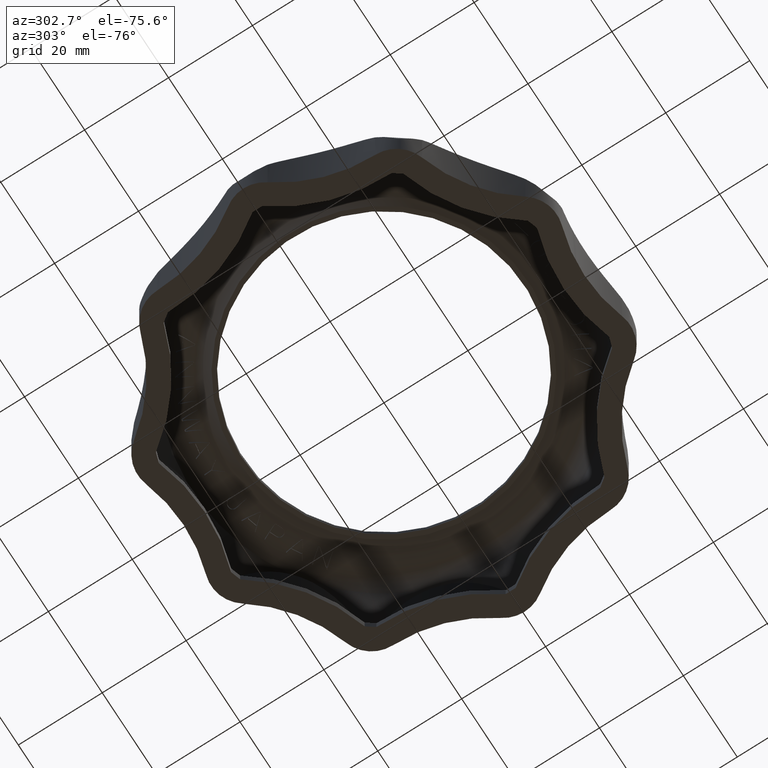
[diagram: clean part render]
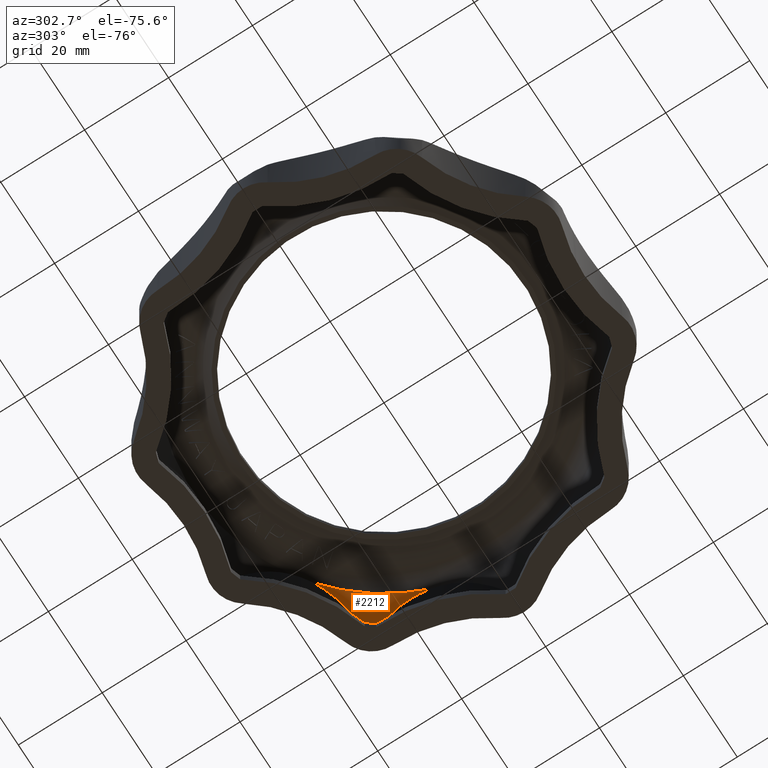
[diagram: same view with one face highlighted and labeled with its STEP entity id]
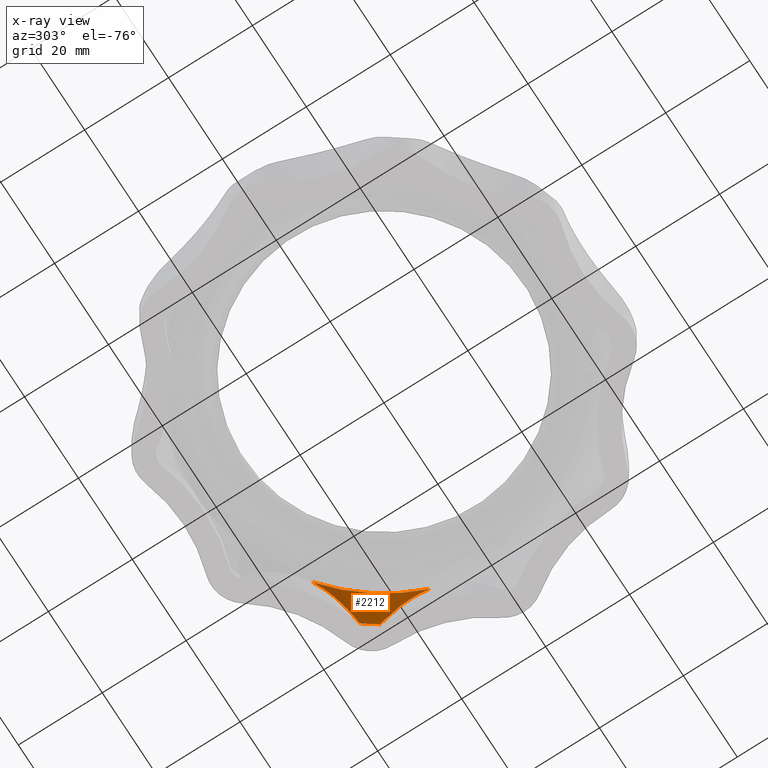
[diagram: x-ray of the same camera — body ghosted, the highlighted face saturated]
A machine part, auxiliary view. The second image highlights one B-rep face of the part: STEP entity #2212.
The next image is the same camera in x-ray: the body ghosted, the highlighted face saturated — about 0% of this face is hidden behind the body in this view.
In plain terms, the highlighted conical surface has half-angle 24.57 deg.
Its self-contained STEP definition (entity closure, byte-faithful):
#2212 = ADVANCED_FACE( '', ( #6566 ), #6567, .F. );
#6566 = FACE_OUTER_BOUND( '', #10997, .T. );
#6567 = CONICAL_SURFACE( '', #10998, 49.5000000000000, 0.428820245296812 );
#10997 = EDGE_LOOP( '', ( #30183, #30184, #30185, #30186, #30187, #30188 ) );
#10998 = AXIS2_PLACEMENT_3D( '', #30189, #30190, #30191 );
#30183 = ORIENTED_EDGE( '', *, *, #35040, .T. );
#30184 = ORIENTED_EDGE( '', *, *, #31573, .T. );
#30185 = ORIENTED_EDGE( '', *, *, #35038, .T. );
#30186 = ORIENTED_EDGE( '', *, *, #35030, .T. );
#30187 = ORIENTED_EDGE( '', *, *, #35026, .F. );
#30188 = ORIENTED_EDGE( '', *, *, #35029, .T. );
#30189 = CARTESIAN_POINT( '', ( 0.000000000000000, 0.000000000000000, 11.7997960675006 ) );
#30190 = DIRECTION( '', ( 3.93122838974283E-017, 7.71547013724938E-017, -1.00000000000000 ) );
#30191 = DIRECTION( '', ( -0.951056516295154, -0.309016994374947, -6.12303176911189E-017 ) );
#31573 = EDGE_CURVE( '', #39036, #39073, #39075, .T. );
#35026 = EDGE_CURVE( '', #45744, #45743, #45746, .T. );
#35029 = EDGE_CURVE( '', #45744, #45748, #45750, .T. );
#35030 = EDGE_CURVE( '', #45751, #45743, #45752, .T. );
#35038 = EDGE_CURVE( '', #39073, #45751, #45764, .T. );
#35040 = EDGE_CURVE( '', #45748, #39036, #45766, .T. );
#39036 = VERTEX_POINT( '', #53664 );
#39073 = VERTEX_POINT( '', #53746 );
#39075 = CIRCLE( '', #53753, 45.4012686158287 );
#45743 = VERTEX_POINT( '', #71159 );
#45744 = VERTEX_POINT( '', #71160 );
#45746 = CIRCLE( '', #71193, 49.5000000000000 );
#45748 = VERTEX_POINT( '', #71195 );
#45750 = B_SPLINE_CURVE_WITH_KNOTS( '', 3, ( #71198, #71199, #71200, #71201 ), .UNSPECIFIED., .F., .F., ( 4, 4 ), ( 2.79569734286648E-007, 0.000814701353727216 ), .UNSPECIFIED. );
#45751 = VERTEX_POINT( '', #71202 );
#45752 = B_SPLINE_CURVE_WITH_KNOTS( '', 3, ( #71203, #71204, #71205, #71206 ), .UNSPECIFIED., .F., .F., ( 4, 4 ), ( 3.86817736261023E-007, 0.000814808667586271 ), .UNSPECIFIED. );
#45764 = B_SPLINE_CURVE_WITH_KNOTS( '', 3, ( #71259, #71260, #71261, #71262, #71263, #71264, #71265, #71266, #71267, #71268, #71269, #71270 ), .UNSPECIFIED., .F., .F., ( 4, 2, 2, 2, 2, 4 ), ( 8.15083510131278E-007, 0.00344970910992022, 0.00517415612312525, 0.00689860313633029, 0.0103474971627404, 0.0137963911891504 ), .UNSPECIFIED. );
#45766 = B_SPLINE_CURVE_WITH_KNOTS( '', 3, ( #71283, #71284, #71285, #71286, #71287, #71288, #71289, #71290, #71291, #71292, #71293, #71294 ), .UNSPECIFIED., .F., .F., ( 4, 2, 2, 2, 2, 4 ), ( 3.39165996632777E-007, 0.00345701982049709, 0.00691370047499754, 0.0103703811294980, 0.0120987214567482, 0.0138270617839984 ), .UNSPECIFIED. );
#53664 = CARTESIAN_POINT( '', ( 42.3967576174761, 16.2416173902602, 20.7647700015187 ) );
#53746 = CARTESIAN_POINT( '', ( 28.5480099900149, 35.3027805921380, 20.7647700015187 ) );
#53753 = AXIS2_PLACEMENT_3D( '', #75462, #75463, #75464 );
#71159 = CARTESIAN_POINT( '', ( 38.8353027394915, 30.6931468105189, 11.7997960675006 ) );
#71160 = CARTESIAN_POINT( '', ( 41.1916815273020, 27.4498701809925, 11.7997960675006 ) );
#71193 = AXIS2_PLACEMENT_3D( '', #75822, #75823, #75824 );
#71195 = CARTESIAN_POINT( '', ( 41.2111262777387, 26.9125339721345, 12.4114941487268 ) );
#71198 = CARTESIAN_POINT( '', ( 41.1916815273021, 27.4498701809922, 11.7997960675004 ) );
#71199 = CARTESIAN_POINT( '', ( 41.2113691469430, 27.2602080894983, 11.9940081925494 ) );
#71200 = CARTESIAN_POINT( '', ( 41.2164028797956, 27.0821985803129, 12.1989220978330 ) );
#71201 = CARTESIAN_POINT( '', ( 41.2111262777388, 26.9125339721342, 12.4114941487266 ) );
#71202 = CARTESIAN_POINT( '', ( 38.3302743266268, 30.8776858201067, 12.4114942003040 ) );
#71203 = CARTESIAN_POINT( '', ( 38.3302743266267, 30.8776858201071, 12.4114942003038 ) );
#71204 = CARTESIAN_POINT( '', ( 38.4932654987188, 30.8302749544654, 12.1989221812944 ) );
#71205 = CARTESIAN_POINT( '', ( 38.6610071081544, 30.7704796585102, 11.9940082597571 ) );
#71206 = CARTESIAN_POINT( '', ( 38.8353027394912, 30.6931468105191, 11.7997960675003 ) );
#71259 = CARTESIAN_POINT( '', ( 28.5480099900149, 35.3027805921380, 20.7647700015187 ) );
#71260 = CARTESIAN_POINT( '', ( 29.5094645886031, 34.6911759417906, 20.4826377533943 ) );
#71261 = CARTESIAN_POINT( '', ( 30.4246929867878, 34.1683650912836, 20.0224400585743 ) );
#71262 = CARTESIAN_POINT( '', ( 31.7537937259581, 33.4721296664901, 19.1595370187087 ) );
#71263 = CARTESIAN_POINT( '', ( 32.1914717906791, 33.2540794157561, 18.8406905419485 ) );
#71264 = CARTESIAN_POINT( '', ( 33.0437904400566, 32.8485573926489, 18.1625269571064 ) );
#71265 = CARTESIAN_POINT( '', ( 33.4571339033138, 32.6615620267080, 17.8046728108731 ) );
#71266 = CARTESIAN_POINT( '', ( 34.6673685916723, 32.1381906193703, 16.6870900485673 ) );
#71267 = CARTESIAN_POINT( '', ( 35.4349089339661, 31.8389259106253, 15.8839754994458 ) );
#71268 = CARTESIAN_POINT( '', ( 36.9186456559212, 31.3096623084176, 14.2001486991534 ) );
#71269 = CARTESIAN_POINT( '', ( 37.6357091862604, 31.0797209004527, 13.3173415067941 ) );
#71270 = CARTESIAN_POINT( '', ( 38.3302743266269, 30.8776858201068, 12.4114942003041 ) );
#71283 = CARTESIAN_POINT( '', ( 41.2111262777386, 26.9125339721344, 12.4114941487267 ) );
#71284 = CARTESIAN_POINT( '', ( 41.1886809797129, 26.1908246876342, 13.3157205775744 ) );
#71285 = CARTESIAN_POINT( '', ( 41.1857146620347, 25.4420371459822, 14.1938237894386 ) );
#71286 = CARTESIAN_POINT( '', ( 41.2302801287213, 23.8686949410058, 15.8770518364384 ) );
#71287 = CARTESIAN_POINT( '', ( 41.2775755567311, 23.0440350878779, 16.6832151402486 ) );
#71288 = CARTESIAN_POINT( '', ( 41.4437257950642, 21.2823642447403, 18.1828316320359 ) );
#71289 = CARTESIAN_POINT( '', ( 41.5609281980215, 20.3608639337276, 18.8637966939277 ) );
#71290 = CARTESIAN_POINT( '', ( 41.8113298084332, 18.8845741096648, 19.7270012044258 ) );
#71291 = CARTESIAN_POINT( '', ( 41.9079866358308, 18.3737877810410, 19.9891929613726 ) );
#71292 = CARTESIAN_POINT( '', ( 42.1304036267387, 17.3248110366998, 20.4384821154979 ) );
#71293 = CARTESIAN_POINT( '', ( 42.2554245117016, 16.7896330694845, 20.6246452284852 ) );
#71294 = CARTESIAN_POINT( '', ( 42.3967576174761, 16.2416173902602, 20.7647700015188 ) );
#75462 = CARTESIAN_POINT( '', ( 0.000000000000000, 0.000000000000000, 20.7647700015187 ) );
#75463 = DIRECTION( '', ( -3.93122838974283E-017, -7.71547013724938E-017, 1.00000000000000 ) );
#75464 = DIRECTION( '', ( 0.951056516295154, 0.309016994374947, 6.12303176911189E-017 ) );
#75822 = CARTESIAN_POINT( '', ( 0.000000000000000, 0.000000000000000, 11.7997960675006 ) );
#75823 = DIRECTION( '', ( -3.93122838974283E-017, -7.71547013724938E-017, 1.00000000000000 ) );
#75824 = DIRECTION( '', ( 0.951056516295154, 0.309016994374947, 6.12303176911189E-017 ) );